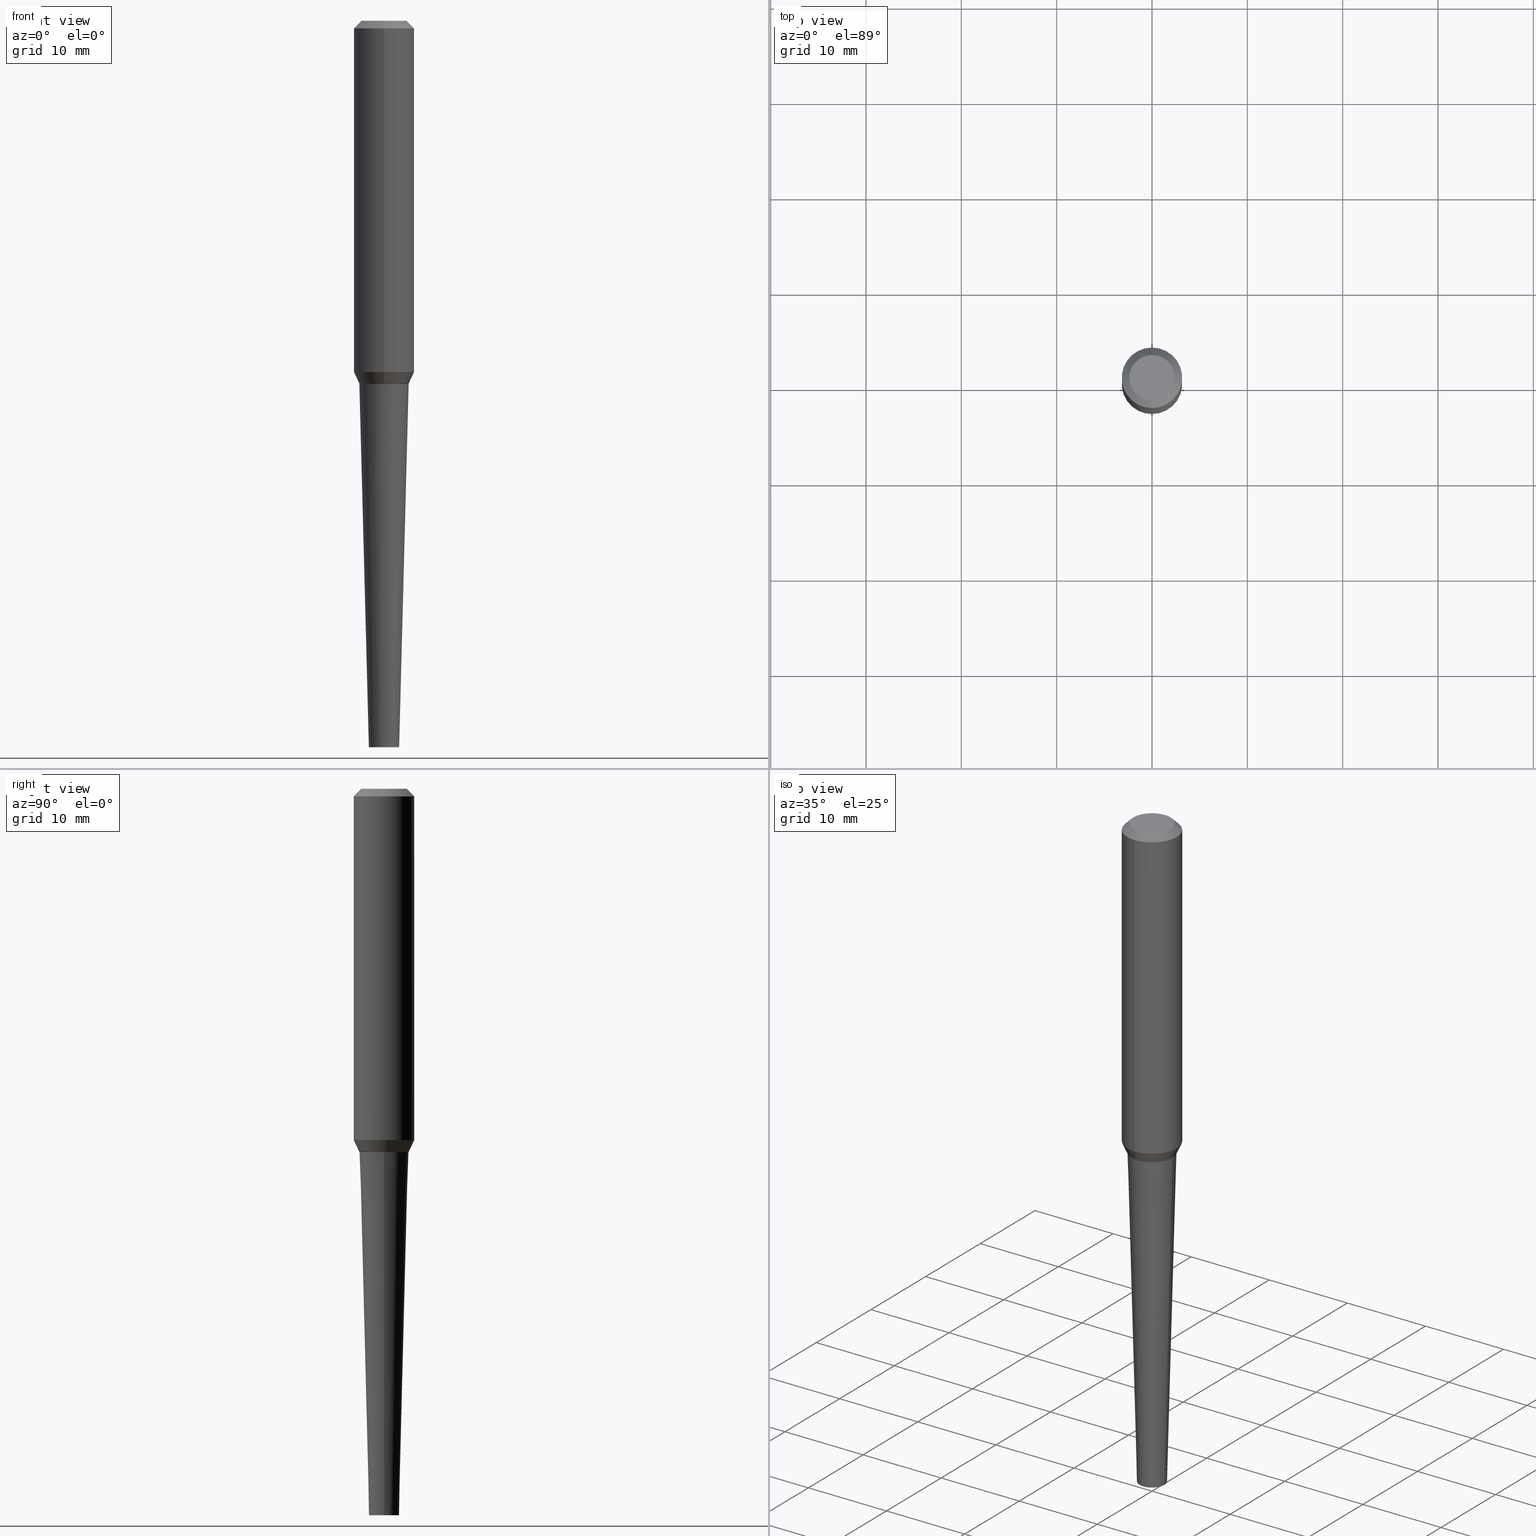
[diagram: canonical four-view strip — front | top / right | iso, engineering-drawing reading convention]
A machine part, canonical four-view strip (front | top / right | iso — engineering-drawing reading convention). The complete STEP part file that produces these views, byte-faithful:
ISO-10303-21;
HEADER;
FILE_DESCRIPTION (( 'STEP AP203' ),
    '1' );
FILE_NAME ('32304.STEP',
    '2024-03-04T15:06:59',
    ( '' ),
    ( '' ),
    'SwSTEP 2.0',
    'SolidWorks 2023',
    '' );
FILE_SCHEMA (( 'CONFIG_CONTROL_DESIGN' ));
ENDSEC;

DATA;
#1 = CIRCLE ( 'NONE', #384, 0.1012788823537695421 ) ;
#2 = PLANE ( 'NONE',  #177 ) ;
#3 = AXIS2_PLACEMENT_3D ( 'NONE', #67, #163, #224 ) ;
#4 = ADVANCED_FACE ( 'NONE', ( #229 ), #321, .T. ) ;
#5 = DIRECTION ( 'NONE',  ( -6.982962677686265133E-15, -1.000000000000000000, 3.039180892951480529E-15 ) ) ;
#6 = CARTESIAN_POINT ( 'NONE',  ( -7.137687792529941639E-16, -0.1022157517086382805, -1.499063130645136077 ) ) ;
#7 = CARTESIAN_POINT ( 'NONE',  ( -0.1017788823537697646, -4.514039553162187952E-15, -1.500000000000000222 ) ) ;
#8 = DIMENSIONAL_EXPONENTS ( 1.000000000000000000, 0.000000000000000000, 0.000000000000000000, 0.000000000000000000, 0.000000000000000000, 0.000000000000000000, 0.000000000000000000 ) ;
#9 = CARTESIAN_POINT ( 'NONE',  ( 3.668203209277704895E-29, -5.237222008264718177E-15, -1.500000000000000222 ) ) ;
#10 = DIRECTION ( 'NONE',  ( 2.770215560302487813E-29, -3.026425503509720832E-15, -1.000000000000000000 ) ) ;
#11 = ORIENTED_EDGE ( 'NONE', *, *, #299, .T. ) ;
#12 = CC_DESIGN_DATE_AND_TIME_ASSIGNMENT ( #139, #274, ( #138 ) ) ;
#13 = APPROVAL_DATE_TIME ( #304, #199 ) ;
#14 = ORIENTED_EDGE ( 'NONE', *, *, #144, .F. ) ;
#15 = VECTOR ( 'NONE', #90, 39.37007874015748143 ) ;
#16 = ADVANCED_FACE ( 'NONE', ( #331 ), #51, .T. ) ;
#17 = COORDINATED_UNIVERSAL_TIME_OFFSET ( 5, 0, .BEHIND. ) ;
#18 = EDGE_LOOP ( 'NONE', ( #369, #245, #109, #236 ) ) ;
#19 = PERSON_AND_ORGANIZATION ( #147, #98 ) ;
#20 = ORIENTED_EDGE ( 'NONE', *, *, #391, .F. ) ;
#21 = APPROVAL_DATE_TIME ( #208, #402 ) ;
#22 = ORIENTED_EDGE ( 'NONE', *, *, #35, .F. ) ;
#23 = APPROVAL_ROLE ( '' ) ;
#24 = FACE_OUTER_BOUND ( 'NONE', #18, .T. ) ;
#25 = PRODUCT_DEFINITION_FORMATION_WITH_SPECIFIED_SOURCE ( 'ANY', '', #262, .NOT_KNOWN. ) ;
#26 = PRODUCT_RELATED_PRODUCT_CATEGORY ( 'detail', '', ( #262 ) ) ;
#27 = DIRECTION ( 'NONE',  ( 2.438088387897960049E-29, -3.491481338843145188E-15, -1.000000000000000000 ) ) ;
#28 = DIRECTION ( 'NONE',  ( -2.770215560302487813E-29, 3.026425503509721227E-15, 1.000000000000000000 ) ) ;
#29 = CIRCLE ( 'NONE', #3, 0.1012788823537695421 ) ;
#30 = DIRECTION ( 'NONE',  ( 5.024295867787830465E-15, 0.7071067811865173747, 0.7071067811865776598 ) ) ;
#31 = PERSON_AND_ORGANIZATION_ROLE ( 'classification_officer' ) ;
#32 = DIRECTION ( 'NONE',  ( -2.770215560302487813E-29, 3.026425503509721227E-15, 1.000000000000000000 ) ) ;
#33 = LOCAL_TIME ( 10, 6, 59.00000000000000000, #176 ) ;
#34 = EDGE_CURVE ( 'NONE', #52, #225, #180, .T. ) ;
#35 = EDGE_CURVE ( 'NONE', #303, #273, #318, .T. ) ;
#36 = CARTESIAN_POINT ( 'NONE',  ( 3.815525097606991370E-29, -5.026248679136029496E-15, -1.500000000000000222 ) ) ;
#37 = CARTESIAN_POINT ( 'NONE',  ( -8.728703347107449805E-16, -0.1250000000000046629, -1.450202152505692510 ) ) ;
#38 = EDGE_LOOP ( 'NONE', ( #201, #380 ) ) ;
#39 = DIRECTION ( 'NONE',  ( -6.982962677686265922E-15, -1.000000000000000000, 2.185478394931414125E-15 ) ) ;
#40 = DIRECTION ( 'NONE',  ( 6.982962677686265922E-15, 1.000000000000000000, -3.026425503509720832E-15 ) ) ;
#41 = DIRECTION ( 'NONE',  ( -2.770215560302487813E-29, 3.026425503509720832E-15, 1.000000000000000000 ) ) ;
#42 = CARTESIAN_POINT ( 'NONE',  ( -7.503669685062676741E-16, -0.09375000000000098532, 2.785450188024345684E-16 ) ) ;
#43 = EDGE_LOOP ( 'NONE', ( #410, #374 ) ) ;
#44 = EDGE_CURVE ( 'NONE', #173, #56, #181, .T. ) ;
#45 = CARTESIAN_POINT ( 'NONE',  ( 4.364351673554662661E-16, 0.06249999999998970962, -3.000000000000000444 ) ) ;
#46 = ORIENTED_EDGE ( 'NONE', *, *, #34, .T. ) ;
#47 = VECTOR ( 'NONE', #155, 39.37007874015748143 ) ;
#48 = CALENDAR_DATE ( 2024, 4, 3 ) ;
#49 = ORIENTED_EDGE ( 'NONE', *, *, #281, .T. ) ;
#50 = CARTESIAN_POINT ( 'NONE',  ( 3.668203209277704895E-29, -5.237222008264718177E-15, -1.500000000000000222 ) ) ;
#51 = PLANE ( 'NONE',  #145 ) ;
#52 = VERTEX_POINT ( 'NONE', #411 ) ;
#53 = AXIS2_PLACEMENT_3D ( 'NONE', #368, #206, #336 ) ;
#54 = APPROVAL_STATUS ( 'not_yet_approved' ) ;
#55 = ADVANCED_FACE ( 'NONE', ( #24 ), #309, .T. ) ;
#56 = VERTEX_POINT ( 'NONE', #148 ) ;
#57 = DIRECTION ( 'NONE',  ( 3.002883358794129651E-15, 0.4226182617407033271, 0.9063077870366481603 ) ) ;
#58 = CLOSED_SHELL ( 'NONE', ( #55, #4, #313, #341, #113, #202, #292, #100, #215, #356 ) ) ;
#59 = DIRECTION ( 'NONE',  ( 0.02617694830786594651, 3.307492242340466707E-15, 0.9996573249755573709 ) ) ;
#60 = CARTESIAN_POINT ( 'NONE',  ( -0.06250000000000018041, -1.003035480667937216E-14, -3.000000000000000444 ) ) ;
#61 = CARTESIAN_POINT ( 'NONE',  ( 7.262865985683120564E-16, 0.1022157517086282330, -1.499063130645136521 ) ) ;
#62 = DIRECTION ( 'NONE',  ( 1.000000000000000000, -6.982962677686273810E-15, 0.000000000000000000 ) ) ;
#63 = CARTESIAN_POINT ( 'NONE',  ( -2.532290065872877801E-30, -5.811862208561258652E-16, -0.03125000000000008327 ) ) ;
#64 = AXIS2_PLACEMENT_3D ( 'NONE', #99, #231, #390 ) ;
#65 = CC_DESIGN_PERSON_AND_ORGANIZATION_ASSIGNMENT ( #308, #108, ( #138 ) ) ;
#66 = DIRECTION ( 'NONE',  ( 6.982962677686265133E-15, 1.000000000000000000, -3.039180892951480529E-15 ) ) ;
#67 = CARTESIAN_POINT ( 'NONE',  ( 3.815525097606991370E-29, -5.026248679136029496E-15, -1.500000000000000222 ) ) ;
#68 = AXIS2_PLACEMENT_3D ( 'NONE', #291, #359, #5 ) ;
#69 = CARTESIAN_POINT ( 'NONE',  ( -7.072266555141126496E-16, -0.1012788823537745519, -1.499999999999999778 ) ) ;
#70 = EDGE_LOOP ( 'NONE', ( #392, #137, #407, #279 ) ) ;
#71 =( NAMED_UNIT ( * ) SI_UNIT ( $, .STERADIAN. ) SOLID_ANGLE_UNIT ( ) );
#72 = EDGE_CURVE ( 'NONE', #273, #166, #284, .T. ) ;
#73 = ORIENTED_EDGE ( 'NONE', *, *, #270, .F. ) ;
#74 = CARTESIAN_POINT ( 'NONE',  ( 0.000000000000000000, 0.000000000000000000, 0.000000000000000000 ) ) ;
#75 = ORIENTED_EDGE ( 'NONE', *, *, #72, .T. ) ;
#76 = CIRCLE ( 'NONE', #157, 0.1017788823537697646 ) ;
#77 = LINE ( 'NONE', #404, #175 ) ;
#78 = ORIENTED_EDGE ( 'NONE', *, *, #342, .F. ) ;
#79 = CALENDAR_DATE ( 2024, 4, 3 ) ;
#80 = EDGE_LOOP ( 'NONE', ( #73, #125, #275, #338 ) ) ;
#81 = ADVANCED_FACE ( 'NONE', ( #253 ), #2, .F. ) ;
#82 = CIRCLE ( 'NONE', #64, 0.09375000000000049960 ) ;
#83 = COORDINATED_UNIVERSAL_TIME_OFFSET ( 5, 0, .BEHIND. ) ;
#84 = CARTESIAN_POINT ( 'NONE',  ( -2.532290065872877801E-30, -5.811862208561258652E-16, -0.03125000000000008327 ) ) ;
#85 = EDGE_CURVE ( 'NONE', #272, #56, #386, .T. ) ;
#86 = CARTESIAN_POINT ( 'NONE',  ( 0.06250000000000018041, -1.091087918388483118E-14, -3.000000000000000444 ) ) ;
#87 = CARTESIAN_POINT ( 'NONE',  ( 3.812929767542177504E-29, -5.023413313827012259E-15, -1.499063130645136299 ) ) ;
#88 = DATE_AND_TIME ( #412, #241 ) ;
#89 = DIRECTION ( 'NONE',  ( -2.770215560302487813E-29, 3.026425503509721227E-15, 1.000000000000000000 ) ) ;
#90 = DIRECTION ( 'NONE',  ( -4.937700262164324795E-15, -0.7071067811865131558, 0.7071067811865818786 ) ) ;
#91 = FACE_OUTER_BOUND ( 'NONE', #143, .T. ) ;
#92 = APPROVAL ( #150, 'UNSPECIFIED' ) ;
#93 = ORIENTED_EDGE ( 'NONE', *, *, #237, .F. ) ;
#94 = DIRECTION ( 'NONE',  ( -6.982962677686265922E-15, -1.000000000000000000, 3.026425503509720832E-15 ) ) ;
#95 = VECTOR ( 'NONE', #57, 39.37007874015748854 ) ;
#96 = DIRECTION ( 'NONE',  ( -6.982962677686265133E-15, -1.000000000000000000, 2.697352034476302034E-15 ) ) ;
#97 = CARTESIAN_POINT ( 'NONE',  ( 6.546527510330876027E-16, 0.09375000000000002776, -2.767566497634205616E-16 ) ) ;
#98 = ORGANIZATION ( 'UNSPECIFIED', 'UNSPECIFIED', '' ) ;
#99 = CARTESIAN_POINT ( 'NONE',  ( -3.397982428467407694E-30, -4.866104238714468673E-16, -5.182372151603375100E-18 ) ) ;
#100 = ADVANCED_FACE ( 'NONE', ( #348 ), #121, .T. ) ;
#101 = AXIS2_PLACEMENT_3D ( 'NONE', #87, #218, #385 ) ;
#102 = EDGE_LOOP ( 'NONE', ( #332, #366, #105, #20 ) ) ;
#103 = PERSON_AND_ORGANIZATION_ROLE ( 'design_owner' ) ;
#104 = ORIENTED_EDGE ( 'NONE', *, *, #353, .F. ) ;
#105 = ORIENTED_EDGE ( 'NONE', *, *, #144, .T. ) ;
#106 = EDGE_LOOP ( 'NONE', ( #159, #207, #243, #372 ) ) ;
#107 = LOCAL_TIME ( 10, 6, 59.00000000000000000, #83 ) ;
#108 = PERSON_AND_ORGANIZATION_ROLE ( 'creator' ) ;
#109 = ORIENTED_EDGE ( 'NONE', *, *, #299, .F. ) ;
#110 = COORDINATED_UNIVERSAL_TIME_OFFSET ( 5, 0, .BEHIND. ) ;
#111 = ORIENTED_EDGE ( 'NONE', *, *, #72, .F. ) ;
#112 = DIRECTION ( 'NONE',  ( -2.770215560302487813E-29, 3.026425503509720832E-15, 1.000000000000000000 ) ) ;
#113 = ADVANCED_FACE ( 'NONE', ( #122 ), #363, .T. ) ;
#114 = AXIS2_PLACEMENT_3D ( 'NONE', #84, #314, #350 ) ;
#115 = DIRECTION ( 'NONE',  ( 2.438088387897960049E-29, -3.491481338843145188E-15, -1.000000000000000000 ) ) ;
#116 = DIRECTION ( 'NONE',  ( -6.982962677686265922E-15, -1.000000000000000000, 3.026425503509721621E-15 ) ) ;
#117 = DESIGN_CONTEXT ( 'detailed design', #261, 'design' ) ;
#118 = CIRCLE ( 'NONE', #339, 0.1017788823537697646 ) ;
#119 = PERSON_AND_ORGANIZATION ( #147, #98 ) ;
#120 = CARTESIAN_POINT ( 'NONE',  ( 0.1017788823537697646, -5.947940145117713967E-15, -1.500000000000000222 ) ) ;
#121 = CONICAL_SURFACE ( 'NONE', #114, 0.1250000000000004996, 0.7853981633974469467 ) ;
#122 = FACE_OUTER_BOUND ( 'NONE', #70, .T. ) ;
#123 = CC_DESIGN_PERSON_AND_ORGANIZATION_ASSIGNMENT ( #364, #330, ( #25 ) ) ;
#124 = DIRECTION ( 'NONE',  ( -2.770215560302487813E-29, 3.026425503509721227E-15, 1.000000000000000000 ) ) ;
#125 = ORIENTED_EDGE ( 'NONE', *, *, #156, .F. ) ;
#126 = DIRECTION ( 'NONE',  ( -2.770215560302487813E-29, 3.026425503509721227E-15, 1.000000000000000000 ) ) ;
#127 = EDGE_CURVE ( 'NONE', #56, #303, #345, .T. ) ;
#128 = DIRECTION ( 'NONE',  ( -2.445468806185136597E-29, 3.491481338843145583E-15, 1.000000000000000000 ) ) ;
#129 = CC_DESIGN_APPROVAL ( #402, ( #25 ) ) ;
#130 = CIRCLE ( 'NONE', #101, 0.1022157517086332568 ) ;
#131 = DIRECTION ( 'NONE',  ( -6.982962677686265133E-15, -1.000000000000000000, 3.039180892951480529E-15 ) ) ;
#132 = CARTESIAN_POINT ( 'NONE',  ( 3.677574325608690539E-29, -4.875539203459369329E-15, -1.450202152505692732 ) ) ;
#133 = CC_DESIGN_APPROVAL ( #199, ( #138 ) ) ;
#134 = VERTEX_POINT ( 'NONE', #120 ) ;
#135 = DIRECTION ( 'NONE',  ( -2.445468806185136597E-29, 3.491481338843145583E-15, 1.000000000000000000 ) ) ;
#136 = LOCAL_TIME ( 10, 6, 59.00000000000000000, #17 ) ;
#137 = ORIENTED_EDGE ( 'NONE', *, *, #353, .T. ) ;
#138 = PRODUCT_DEFINITION ( 'UNKNOWN', '', #25, #117 ) ;
#139 = DATE_AND_TIME ( #276, #136 ) ;
#140 = ORIENTED_EDGE ( 'NONE', *, *, #187, .T. ) ;
#141 = APPLICATION_PROTOCOL_DEFINITION ( 'international standard', 'config_control_design', 1994, #261 ) ;
#142 = ORIENTED_EDGE ( 'NONE', *, *, #127, .F. ) ;
#143 = EDGE_LOOP ( 'NONE', ( #362, #355, #75, #78 ) ) ;
#144 = EDGE_CURVE ( 'NONE', #171, #134, #252, .T. ) ;
#145 = AXIS2_PLACEMENT_3D ( 'NONE', #45, #27, #315 ) ;
#146 = CARTESIAN_POINT ( 'NONE',  ( -7.072266555141127482E-16, -0.1012788823537745797, -1.499999999999999778 ) ) ;
#147 = PERSON ( 'UNSPECIFIED', 'UNSPECIFIED', 'UNSPECIFIED', ('UNSPECIFIED'), ('UNSPECIFIED'), ('UNSPECIFIED') ) ;
#148 = CARTESIAN_POINT ( 'NONE',  ( 7.262865985683119578E-16, 0.1022157517086282053, -1.499063130645136521 ) ) ;
#149 = AXIS2_PLACEMENT_3D ( 'NONE', #97, #10, #40 ) ;
#150 = APPROVAL_STATUS ( 'not_yet_approved' ) ;
#151 = CARTESIAN_POINT ( 'NONE',  ( -3.397982428467407694E-30, -4.866104238714468673E-16, -5.182372151603375100E-18 ) ) ;
#152 = MANIFOLD_SOLID_BREP ( 'Body-Move/Copy2[1]', #360 ) ;
#153 = DIRECTION ( 'NONE',  ( -1.000000000000000000, 6.982962677686265922E-15, -4.876176775795935793E-29 ) ) ;
#154 = CONICAL_SURFACE ( 'NONE', #254, 0.1022157517086332568, 0.4363323129985837157 ) ;
#155 = DIRECTION ( 'NONE',  ( -2.770215560302487813E-29, 3.026425503509720832E-15, 1.000000000000000000 ) ) ;
#156 = EDGE_CURVE ( 'NONE', #399, #403, #414, .T. ) ;
#157 = AXIS2_PLACEMENT_3D ( 'NONE', #9, #128, #328 ) ;
#158 = DIRECTION ( 'NONE',  ( -6.982962677686265133E-15, -1.000000000000000000, 2.697352034476301640E-15 ) ) ;
#159 = ORIENTED_EDGE ( 'NONE', *, *, #222, .T. ) ;
#160 = ADVANCED_FACE ( 'NONE', ( #255 ), #263, .T. ) ;
#161 = DIRECTION ( 'NONE',  ( -2.951127548643983149E-15, -0.4226182617406979425, 0.9063077870366507138 ) ) ;
#162 = DIRECTION ( 'NONE',  ( -2.770215560302487813E-29, 3.026425503509721227E-15, 1.000000000000000000 ) ) ;
#163 = DIRECTION ( 'NONE',  ( -2.770215560302487813E-29, 3.026425503509721227E-15, 1.000000000000000000 ) ) ;
#164 = CC_DESIGN_SECURITY_CLASSIFICATION ( #268, ( #25 ) ) ;
#165 = CYLINDRICAL_SURFACE ( 'NONE', #340, 0.1250000000000001388 ) ;
#166 = VERTEX_POINT ( 'NONE', #257 ) ;
#167 = EDGE_LOOP ( 'NONE', ( #298, #104 ) ) ;
#168 = EDGE_CURVE ( 'NONE', #56, #272, #130, .T. ) ;
#169 = CARTESIAN_POINT ( 'NONE',  ( 7.637615428719357173E-16, 0.09375000000000002776, -2.889097631056412924E-16 ) ) ;
#170 = VECTOR ( 'NONE', #59, 39.37007874015748143 ) ;
#171 = VERTEX_POINT ( 'NONE', #388 ) ;
#172 = DIRECTION ( 'NONE',  ( 0.000000000000000000, 0.000000000000000000, 1.000000000000000000 ) ) ;
#173 = VERTEX_POINT ( 'NONE', #183 ) ;
#174 = AXIS2_PLACEMENT_3D ( 'NONE', #287, #89, #217 ) ;
#175 = VECTOR ( 'NONE', #200, 39.37007874015748143 ) ;
#176 = COORDINATED_UNIVERSAL_TIME_OFFSET ( 5, 0, .BEHIND. ) ;
#177 = AXIS2_PLACEMENT_3D ( 'NONE', #413, #115, #153 ) ;
#178 = PLANE ( 'NONE',  #212 ) ;
#179 = PERSON_AND_ORGANIZATION ( #147, #98 ) ;
#180 = LINE ( 'NONE', #60, #389 ) ;
#181 = LINE ( 'NONE', #312, #198 ) ;
#182 = CIRCLE ( 'NONE', #242, 0.06250000000000018041 ) ;
#183 = CARTESIAN_POINT ( 'NONE',  ( 7.229581699960386873E-16, 0.1012788823537645183, -1.500000000000000444 ) ) ;
#184 = CARTESIAN_POINT ( 'NONE',  ( 7.336406418555409790E-29, -1.047444401652943635E-14, -3.000000000000000444 ) ) ;
#185 = UNCERTAINTY_MEASURE_WITH_UNIT (LENGTH_MEASURE( 1.000000000000000082E-05 ), #244, 'distance_accuracy_value', 'NONE');
#186 = DIRECTION ( 'NONE',  ( -6.982962677686266711E-15, -1.000000000000000000, 3.026425503509721621E-15 ) ) ;
#187 = EDGE_CURVE ( 'NONE', #303, #335, #416, .T. ) ;
#188 = EDGE_CURVE ( 'NONE', #216, #272, #290, .T. ) ;
#189 = AXIS2_PLACEMENT_3D ( 'NONE', #63, #294, #66 ) ;
#190 = CARTESIAN_POINT ( 'NONE',  ( 3.812929767542177504E-29, -5.023413313827012259E-15, -1.499063130645136299 ) ) ;
#191 = DIRECTION ( 'NONE',  ( -2.445468806185136597E-29, 3.491481338843145583E-15, 1.000000000000000000 ) ) ;
#192 = APPROVAL_PERSON_ORGANIZATION ( #197, #199, #333 ) ;
#193 = CARTESIAN_POINT ( 'NONE',  ( 3.815525097606991370E-29, -5.026248679136029496E-15, -1.500000000000000222 ) ) ;
#194 = DIRECTION ( 'NONE',  ( 1.000000000000000000, -6.982962677686273810E-15, 0.000000000000000000 ) ) ;
#195 = AXIS2_PLACEMENT_3D ( 'NONE', #151, #415, #116 ) ;
#196 = ORIENTED_EDGE ( 'NONE', *, *, #235, .T. ) ;
#197 = PERSON_AND_ORGANIZATION ( #147, #98 ) ;
#198 = VECTOR ( 'NONE', #30, 39.37007874015748143 ) ;
#199 = APPROVAL ( #54, 'UNSPECIFIED' ) ;
#200 = DIRECTION ( 'NONE',  ( 4.937700262164543309E-15, 0.7071067811865444641, -0.7071067811865505703 ) ) ;
#201 = ORIENTED_EDGE ( 'NONE', *, *, #311, .F. ) ;
#202 = ADVANCED_FACE ( 'NONE', ( #352 ), #178, .F. ) ;
#203 = DIRECTION ( 'NONE',  ( 1.000000000000000000, 0.000000000000000000, 0.000000000000000000 ) ) ;
#204 = AXIS2_PLACEMENT_3D ( 'NONE', #184, #221, #383 ) ;
#205 = EDGE_LOOP ( 'NONE', ( #142, #300, #49, #22 ) ) ;
#206 = DIRECTION ( 'NONE',  ( -2.445468806185136597E-29, 3.491481338843145583E-15, 1.000000000000000000 ) ) ;
#207 = ORIENTED_EDGE ( 'NONE', *, *, #44, .T. ) ;
#208 = DATE_AND_TIME ( #79, #249 ) ;
#209 = ORIENTED_EDGE ( 'NONE', *, *, #376, .F. ) ;
#210 = CIRCLE ( 'NONE', #53, 0.06250000000000018041 ) ;
#211 = ORIENTED_EDGE ( 'NONE', *, *, #235, .F. ) ;
#212 = AXIS2_PLACEMENT_3D ( 'NONE', #260, #41, #94 ) ;
#213 = PERSON_AND_ORGANIZATION_ROLE ( 'design_supplier' ) ;
#214 = DIRECTION ( 'NONE',  ( -6.982962677686265133E-15, -1.000000000000000000, 2.697352034476301640E-15 ) ) ;
#215 = ADVANCED_FACE ( 'NONE', ( #91 ), #165, .T. ) ;
#216 = VERTEX_POINT ( 'NONE', #69 ) ;
#217 = DIRECTION ( 'NONE',  ( -6.982962677686265922E-15, -1.000000000000000000, 2.185478394931414125E-15 ) ) ;
#218 = DIRECTION ( 'NONE',  ( -2.770215560302487813E-29, 3.026425503509721227E-15, 1.000000000000000000 ) ) ;
#219 = COORDINATED_UNIVERSAL_TIME_OFFSET ( 5, 0, .BEHIND. ) ;
#220 = DIRECTION ( 'NONE',  ( -6.982962677686265922E-15, -1.000000000000000000, 2.672629167226021859E-15 ) ) ;
#221 = DIRECTION ( 'NONE',  ( -2.445468806185136597E-29, 3.491481338843145583E-15, 1.000000000000000000 ) ) ;
#222 = EDGE_CURVE ( 'NONE', #216, #173, #29, .T. ) ;
#223 = ADVANCED_FACE ( 'NONE', ( #354 ), #286, .T. ) ;
#224 = DIRECTION ( 'NONE',  ( -6.982962677686265133E-15, -1.000000000000000000, 2.697352034476302034E-15 ) ) ;
#225 = VERTEX_POINT ( 'NONE', #7 ) ;
#226 = CC_DESIGN_APPROVAL ( #92, ( #268 ) ) ;
#227 = PRODUCT_DEFINITION_SHAPE ( 'NONE', 'NONE',  #138 ) ;
#228 = CARTESIAN_POINT ( 'NONE',  ( -3.397982428467408395E-30, -4.866104238714468673E-16, 1.912385453283800096E-17 ) ) ;
#229 = FACE_OUTER_BOUND ( 'NONE', #239, .T. ) ;
#230 = DIRECTION ( 'NONE',  ( -2.770215560302487813E-29, 3.026425503509721227E-15, 1.000000000000000000 ) ) ;
#231 = DIRECTION ( 'NONE',  ( -2.770215560302487813E-29, 3.026425503509721227E-15, 1.000000000000000000 ) ) ;
#232 = ORIENTED_EDGE ( 'NONE', *, *, #285, .F. ) ;
#233 = DIRECTION ( 'NONE',  ( -2.445468806185136597E-29, 3.491481338843145583E-15, 1.000000000000000000 ) ) ;
#234 = AXIS2_PLACEMENT_3D ( 'NONE', #132, #264, #39 ) ;
#235 = EDGE_CURVE ( 'NONE', #134, #225, #76, .T. ) ;
#236 = ORIENTED_EDGE ( 'NONE', *, *, #281, .F. ) ;
#237 = EDGE_CURVE ( 'NONE', #166, #335, #370, .T. ) ;
#238 = ORIENTED_EDGE ( 'NONE', *, *, #270, .T. ) ;
#239 = EDGE_LOOP ( 'NONE', ( #11, #140, #93, #111 ) ) ;
#240 = APPROVAL_STATUS ( 'not_yet_approved' ) ;
#241 = LOCAL_TIME ( 10, 6, 59.00000000000000000, #219 ) ;
#242 = AXIS2_PLACEMENT_3D ( 'NONE', #398, #233, #62 ) ;
#243 = ORIENTED_EDGE ( 'NONE', *, *, #85, .F. ) ;
#244 =( CONVERSION_BASED_UNIT ( 'INCH', #301 ) LENGTH_UNIT ( ) NAMED_UNIT ( #8 ) );
#245 = ORIENTED_EDGE ( 'NONE', *, *, #127, .T. ) ;
#246 = EDGE_LOOP ( 'NONE', ( #196, #259 ) ) ;
#247 = CARTESIAN_POINT ( 'NONE',  ( 3.815525097606991370E-29, -5.026248679136029496E-15, -1.500000000000000222 ) ) ;
#248 = CC_DESIGN_DATE_AND_TIME_ASSIGNMENT ( #288, #382, ( #268 ) ) ;
#249 = LOCAL_TIME ( 10, 6, 59.00000000000000000, #110 ) ;
#250 = AXIS2_PLACEMENT_3D ( 'NONE', #289, #378, #220 ) ;
#251 = SHAPE_DEFINITION_REPRESENTATION ( #227, #343 ) ;
#252 = LINE ( 'NONE', #86, #170 ) ;
#253 = FACE_OUTER_BOUND ( 'NONE', #246, .T. ) ;
#254 = AXIS2_PLACEMENT_3D ( 'NONE', #190, #126, #401 ) ;
#255 = FACE_OUTER_BOUND ( 'NONE', #405, .T. ) ;
#256 = VECTOR ( 'NONE', #112, 39.37007874015748143 ) ;
#257 = CARTESIAN_POINT ( 'NONE',  ( -8.575622497214472631E-16, -0.1250000000000010825, -0.03124999999999970163 ) ) ;
#258 = FACE_OUTER_BOUND ( 'NONE', #205, .T. ) ;
#259 = ORIENTED_EDGE ( 'NONE', *, *, #391, .T. ) ;
#260 = CARTESIAN_POINT ( 'NONE',  ( 3.622175838275092881E-29, -5.303135823255727947E-15, -1.500000000000000444 ) ) ;
#261 = APPLICATION_CONTEXT ( 'configuration controlled 3d designs of mechanical parts and assemblies' ) ;
#262 = PRODUCT ( '32304', '32304', '', ( #409 ) ) ;
#263 = CONICAL_SURFACE ( 'NONE', #204, 0.06250000000000018041, 0.02617993877990773197 ) ;
#264 = DIRECTION ( 'NONE',  ( -2.770215560302487813E-29, 3.026425503509721227E-15, 1.000000000000000000 ) ) ;
#265 = LINE ( 'NONE', #396, #334 ) ;
#266 = AXIS2_PLACEMENT_3D ( 'NONE', #36, #162, #158 ) ;
#267 = CARTESIAN_POINT ( 'NONE',  ( 8.881784197001419956E-16, 0.1249999999999949069, -1.450202152505693176 ) ) ;
#268 = SECURITY_CLASSIFICATION ( '', '', #280 ) ;
#269 =( LENGTH_UNIT ( ) NAMED_UNIT ( * ) SI_UNIT ( $, .METRE. ) );
#270 = EDGE_CURVE ( 'NONE', #403, #166, #265, .T. ) ;
#271 = AXIS2_PLACEMENT_3D ( 'NONE', #295, #293, #131 ) ;
#272 = VERTEX_POINT ( 'NONE', #329 ) ;
#273 = VERTEX_POINT ( 'NONE', #37 ) ;
#274 = DATE_TIME_ROLE ( 'creation_date' ) ;
#275 = ORIENTED_EDGE ( 'NONE', *, *, #376, .T. ) ;
#276 = CALENDAR_DATE ( 2024, 4, 3 ) ;
#277 = ORIENTED_EDGE ( 'NONE', *, *, #311, .T. ) ;
#278 = DIRECTION ( 'NONE',  ( -6.982962677686266711E-15, -1.000000000000000000, 3.026425503509721621E-15 ) ) ;
#279 = ORIENTED_EDGE ( 'NONE', *, *, #168, .F. ) ;
#280 = SECURITY_CLASSIFICATION_LEVEL ( 'unclassified' ) ;
#281 = EDGE_CURVE ( 'NONE', #272, #273, #393, .T. ) ;
#282 = DIRECTION ( 'NONE',  ( -0.02617694830786594651, 3.676283300035235311E-15, 0.9996573249755573709 ) ) ;
#283 = PERSON_AND_ORGANIZATION ( #147, #98 ) ;
#284 = LINE ( 'NONE', #317, #256 ) ;
#285 = EDGE_CURVE ( 'NONE', #403, #399, #82, .T. ) ;
#286 = CONICAL_SURFACE ( 'NONE', #400, 0.06250000000000018041, 0.02617993877990773197 ) ;
#287 = CARTESIAN_POINT ( 'NONE',  ( 3.677574325608690539E-29, -4.875539203459369329E-15, -1.450202152505692732 ) ) ;
#288 = DATE_AND_TIME ( #344, #107 ) ;
#289 = CARTESIAN_POINT ( 'NONE',  ( 3.812929767542177504E-29, -5.023413313827012259E-15, -1.499063130645136299 ) ) ;
#290 = LINE ( 'NONE', #146, #15 ) ;
#291 = CARTESIAN_POINT ( 'NONE',  ( -2.532290065872877801E-30, -5.811862208561258652E-16, -0.03125000000000008327 ) ) ;
#292 = ADVANCED_FACE ( 'NONE', ( #296 ), #361, .F. ) ;
#293 = DIRECTION ( 'NONE',  ( -2.770215560302487813E-29, 3.026425503509721227E-15, 1.000000000000000000 ) ) ;
#294 = DIRECTION ( 'NONE',  ( 2.770215560302487813E-29, -3.026425503509721227E-15, -1.000000000000000000 ) ) ;
#295 = CARTESIAN_POINT ( 'NONE',  ( -2.532290065872877801E-30, -5.811862208561258652E-16, -0.03125000000000008327 ) ) ;
#296 = FACE_OUTER_BOUND ( 'NONE', #43, .T. ) ;
#297 = MANIFOLD_SOLID_BREP ( 'Body-Move/Copy2[2]', #58 ) ;
#298 = ORIENTED_EDGE ( 'NONE', *, *, #222, .F. ) ;
#299 = EDGE_CURVE ( 'NONE', #273, #303, #324, .T. ) ;
#300 = ORIENTED_EDGE ( 'NONE', *, *, #168, .T. ) ;
#301 = LENGTH_MEASURE_WITH_UNIT ( LENGTH_MEASURE( 0.02539999999999999897 ), #269 );
#302 = VECTOR ( 'NONE', #161, 39.37007874015748143 ) ;
#303 = VERTEX_POINT ( 'NONE', #267 ) ;
#304 = DATE_AND_TIME ( #48, #33 ) ;
#305 = EDGE_LOOP ( 'NONE', ( #232, #238, #310, #209 ) ) ;
#306 = APPLICATION_PROTOCOL_DEFINITION ( 'international standard', 'config_control_design', 1994, #347 ) ;
#307 = CIRCLE ( 'NONE', #68, 0.1250000000000004996 ) ;
#308 = PERSON_AND_ORGANIZATION ( #147, #98 ) ;
#309 = CONICAL_SURFACE ( 'NONE', #250, 0.1022157517086332568, 0.4363323129985837157 ) ;
#310 = ORIENTED_EDGE ( 'NONE', *, *, #237, .T. ) ;
#311 = EDGE_CURVE ( 'NONE', #171, #52, #182, .T. ) ;
#312 = CARTESIAN_POINT ( 'NONE',  ( 7.196297414237656140E-16, 0.1012788823537645322, -1.500000000000000444 ) ) ;
#313 = ADVANCED_FACE ( 'NONE', ( #358 ), #379, .T. ) ;
#314 = DIRECTION ( 'NONE',  ( 2.770215560302487813E-29, -3.026425503509721227E-15, -1.000000000000000000 ) ) ;
#315 = DIRECTION ( 'NONE',  ( -1.000000000000000000, 6.982962677686265922E-15, -4.876176775795935793E-29 ) ) ;
#316 = APPROVAL_PERSON_ORGANIZATION ( #406, #402, #373 ) ;
#317 = CARTESIAN_POINT ( 'NONE',  ( -8.728703347107876776E-16, -0.1250000000000006384, 3.974270424715535980E-16 ) ) ;
#318 = CIRCLE ( 'NONE', #174, 0.1249999999999997918 ) ;
#319 = CARTESIAN_POINT ( 'NONE',  ( 8.881784197001227671E-16, 0.1249999999999996808, -3.591793334058776454E-16 ) ) ;
#320 = AXIS2_PLACEMENT_3D ( 'NONE', #74, #172, #203 ) ;
#321 = CYLINDRICAL_SURFACE ( 'NONE', #351, 0.1250000000000001388 ) ;
#322 = DIRECTION ( 'NONE',  ( -4.851104656540954809E-15, -0.7071067811865486830, -0.7071067811865463515 ) ) ;
#323 = APPROVAL_PERSON_ORGANIZATION ( #119, #92, #23 ) ;
#324 = CIRCLE ( 'NONE', #234, 0.1249999999999997918 ) ;
#325 = CC_DESIGN_PERSON_AND_ORGANIZATION_ASSIGNMENT ( #283, #213, ( #25 ) ) ;
#326 = CARTESIAN_POINT ( 'NONE',  ( 7.336406418555409790E-29, -1.047444401652943635E-14, -3.000000000000000444 ) ) ;
#327 = CARTESIAN_POINT ( 'NONE',  ( 8.728703347107841277E-16, 0.1249999999999999167, -0.03125000000000045797 ) ) ;
#328 = DIRECTION ( 'NONE',  ( 1.000000000000000000, -6.982962677686263555E-15, 0.000000000000000000 ) ) ;
#329 = CARTESIAN_POINT ( 'NONE',  ( -7.137687792529942625E-16, -0.1022157517086383083, -1.499063130645136077 ) ) ;
#330 = PERSON_AND_ORGANIZATION_ROLE ( 'creator' ) ;
#331 = FACE_OUTER_BOUND ( 'NONE', #38, .T. ) ;
#332 = ORIENTED_EDGE ( 'NONE', *, *, #34, .F. ) ;
#333 = APPROVAL_ROLE ( '' ) ;
#334 = VECTOR ( 'NONE', #322, 39.37007874015748143 ) ;
#335 = VERTEX_POINT ( 'NONE', #327 ) ;
#336 = DIRECTION ( 'NONE',  ( 1.000000000000000000, -6.982962677686273810E-15, 0.000000000000000000 ) ) ;
#337 = DIRECTION ( 'NONE',  ( -2.770215560302487813E-29, 3.026425503509721227E-15, 1.000000000000000000 ) ) ;
#338 = ORIENTED_EDGE ( 'NONE', *, *, #342, .T. ) ;
#339 = AXIS2_PLACEMENT_3D ( 'NONE', #50, #135, #408 ) ;
#340 = AXIS2_PLACEMENT_3D ( 'NONE', #228, #230, #186 ) ;
#341 = ADVANCED_FACE ( 'NONE', ( #395 ), #375, .T. ) ;
#342 = EDGE_CURVE ( 'NONE', #335, #166, #307, .T. ) ;
#343 = ADVANCED_BREP_SHAPE_REPRESENTATION ( '32304', ( #152, #297, #320 ), #397 ) ;
#344 = CALENDAR_DATE ( 2024, 4, 3 ) ;
#345 = LINE ( 'NONE', #61, #95 ) ;
#346 = DIRECTION ( 'NONE',  ( -6.982962677686265922E-15, -1.000000000000000000, 2.672629167226021859E-15 ) ) ;
#347 = APPLICATION_CONTEXT ( 'configuration controlled 3d designs of mechanical parts and assemblies' ) ;
#348 = FACE_OUTER_BOUND ( 'NONE', #80, .T. ) ;
#349 = APPROVAL_DATE_TIME ( #88, #92 ) ;
#350 = DIRECTION ( 'NONE',  ( 6.982962677686265133E-15, 1.000000000000000000, -3.039180892951480529E-15 ) ) ;
#351 = AXIS2_PLACEMENT_3D ( 'NONE', #371, #337, #278 ) ;
#352 = FACE_OUTER_BOUND ( 'NONE', #167, .T. ) ;
#353 = EDGE_CURVE ( 'NONE', #173, #216, #1, .T. ) ;
#354 = FACE_OUTER_BOUND ( 'NONE', #102, .T. ) ;
#355 = ORIENTED_EDGE ( 'NONE', *, *, #35, .T. ) ;
#356 = ADVANCED_FACE ( 'NONE', ( #258 ), #154, .T. ) ;
#357 = AXIS2_PLACEMENT_3D ( 'NONE', #247, #28, #214 ) ;
#358 = FACE_OUTER_BOUND ( 'NONE', #305, .T. ) ;
#359 = DIRECTION ( 'NONE',  ( -2.770215560302487813E-29, 3.026425503509721227E-15, 1.000000000000000000 ) ) ;
#360 = CLOSED_SHELL ( 'NONE', ( #160, #16, #223, #81 ) ) ;
#361 = PLANE ( 'NONE',  #149 ) ;
#362 = ORIENTED_EDGE ( 'NONE', *, *, #187, .F. ) ;
#363 = CONICAL_SURFACE ( 'NONE', #357, 0.1012788823537695559, 0.7853981633974026488 ) ;
#364 = PERSON_AND_ORGANIZATION ( #147, #98 ) ;
#365 =( NAMED_UNIT ( * ) PLANE_ANGLE_UNIT ( ) SI_UNIT ( $, .RADIAN. ) );
#366 = ORIENTED_EDGE ( 'NONE', *, *, #377, .T. ) ;
#367 = CC_DESIGN_PERSON_AND_ORGANIZATION_ASSIGNMENT ( #179, #31, ( #268 ) ) ;
#368 = CARTESIAN_POINT ( 'NONE',  ( 7.336406418555409790E-29, -1.047444401652943635E-14, -3.000000000000000444 ) ) ;
#369 = ORIENTED_EDGE ( 'NONE', *, *, #85, .T. ) ;
#370 = CIRCLE ( 'NONE', #271, 0.1250000000000004996 ) ;
#371 = CARTESIAN_POINT ( 'NONE',  ( -3.397982428467408395E-30, -4.866104238714468673E-16, 1.912385453283800096E-17 ) ) ;
#372 = ORIENTED_EDGE ( 'NONE', *, *, #188, .F. ) ;
#373 = APPROVAL_ROLE ( '' ) ;
#374 = ORIENTED_EDGE ( 'NONE', *, *, #285, .T. ) ;
#375 = CONICAL_SURFACE ( 'NONE', #266, 0.1012788823537695559, 0.7853981633974026488 ) ;
#376 = EDGE_CURVE ( 'NONE', #399, #335, #77, .T. ) ;
#377 = EDGE_CURVE ( 'NONE', #52, #171, #210, .T. ) ;
#378 = DIRECTION ( 'NONE',  ( -2.770215560302487813E-29, 3.026425503509721227E-15, 1.000000000000000000 ) ) ;
#379 = CONICAL_SURFACE ( 'NONE', #189, 0.1250000000000004996, 0.7853981633974469467 ) ;
#380 = ORIENTED_EDGE ( 'NONE', *, *, #377, .F. ) ;
#381 = CARTESIAN_POINT ( 'NONE',  ( 3.812929767542177504E-29, -5.023413313827012259E-15, -1.499063130645136299 ) ) ;
#382 = DATE_TIME_ROLE ( 'classification_date' ) ;
#383 = DIRECTION ( 'NONE',  ( 1.000000000000000000, -6.982962677686273810E-15, 0.000000000000000000 ) ) ;
#384 = AXIS2_PLACEMENT_3D ( 'NONE', #193, #124, #96 ) ;
#385 = DIRECTION ( 'NONE',  ( -6.982962677686265922E-15, -1.000000000000000000, 2.672629167226021859E-15 ) ) ;
#386 = CIRCLE ( 'NONE', #394, 0.1022157517086332568 ) ;
#387 = CC_DESIGN_PERSON_AND_ORGANIZATION_ASSIGNMENT ( #19, #103, ( #262 ) ) ;
#388 = CARTESIAN_POINT ( 'NONE',  ( 0.06250000000000018041, -1.091087918388483118E-14, -3.000000000000000444 ) ) ;
#389 = VECTOR ( 'NONE', #282, 39.37007874015748143 ) ;
#390 = DIRECTION ( 'NONE',  ( -6.982962677686265922E-15, -1.000000000000000000, 3.026425503509721621E-15 ) ) ;
#391 = EDGE_CURVE ( 'NONE', #225, #134, #118, .T. ) ;
#392 = ORIENTED_EDGE ( 'NONE', *, *, #44, .F. ) ;
#393 = LINE ( 'NONE', #6, #302 ) ;
#394 = AXIS2_PLACEMENT_3D ( 'NONE', #381, #32, #346 ) ;
#395 = FACE_OUTER_BOUND ( 'NONE', #106, .T. ) ;
#396 = CARTESIAN_POINT ( 'NONE',  ( -8.575622497214472631E-16, -0.1250000000000010825, -0.03124999999999970163 ) ) ;
#397 =( GEOMETRIC_REPRESENTATION_CONTEXT ( 3 ) GLOBAL_UNCERTAINTY_ASSIGNED_CONTEXT ( ( #185 ) ) GLOBAL_UNIT_ASSIGNED_CONTEXT ( ( #244, #365, #71 ) ) REPRESENTATION_CONTEXT ( 'NONE', 'WORKASPACE' ) );
#398 = CARTESIAN_POINT ( 'NONE',  ( 7.336406418555409790E-29, -1.047444401652943635E-14, -3.000000000000000444 ) ) ;
#399 = VERTEX_POINT ( 'NONE', #169 ) ;
#400 = AXIS2_PLACEMENT_3D ( 'NONE', #326, #191, #194 ) ;
#401 = DIRECTION ( 'NONE',  ( -6.982962677686265922E-15, -1.000000000000000000, 2.672629167226021859E-15 ) ) ;
#402 = APPROVAL ( #240, 'UNSPECIFIED' ) ;
#403 = VERTEX_POINT ( 'NONE', #42 ) ;
#404 = CARTESIAN_POINT ( 'NONE',  ( 8.728703347107841277E-16, 0.1249999999999999167, -0.03125000000000045797 ) ) ;
#405 = EDGE_LOOP ( 'NONE', ( #277, #46, #211, #14 ) ) ;
#406 = PERSON_AND_ORGANIZATION ( #147, #98 ) ;
#407 = ORIENTED_EDGE ( 'NONE', *, *, #188, .T. ) ;
#408 = DIRECTION ( 'NONE',  ( 1.000000000000000000, -6.982962677686263555E-15, 0.000000000000000000 ) ) ;
#409 = MECHANICAL_CONTEXT ( 'NONE', #347, 'mechanical' ) ;
#410 = ORIENTED_EDGE ( 'NONE', *, *, #156, .T. ) ;
#411 = CARTESIAN_POINT ( 'NONE',  ( -0.06250000000000018041, -7.272197179920781633E-15, -3.000000000000000444 ) ) ;
#412 = CALENDAR_DATE ( 2024, 4, 3 ) ;
#413 = CARTESIAN_POINT ( 'NONE',  ( 7.107181368530321762E-16, 0.1017788823537645188, -1.500000000000000666 ) ) ;
#414 = CIRCLE ( 'NONE', #195, 0.09375000000000049960 ) ;
#415 = DIRECTION ( 'NONE',  ( -2.770215560302487813E-29, 3.026425503509721227E-15, 1.000000000000000000 ) ) ;
#416 = LINE ( 'NONE', #319, #47 ) ;
ENDSEC;
END-ISO-10303-21;
